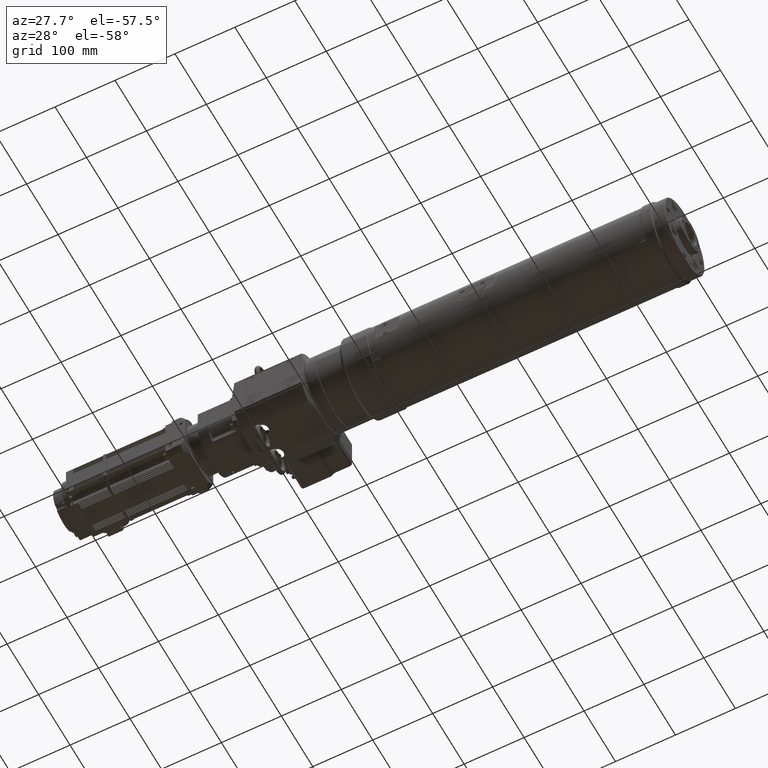
[diagram: clean part render]
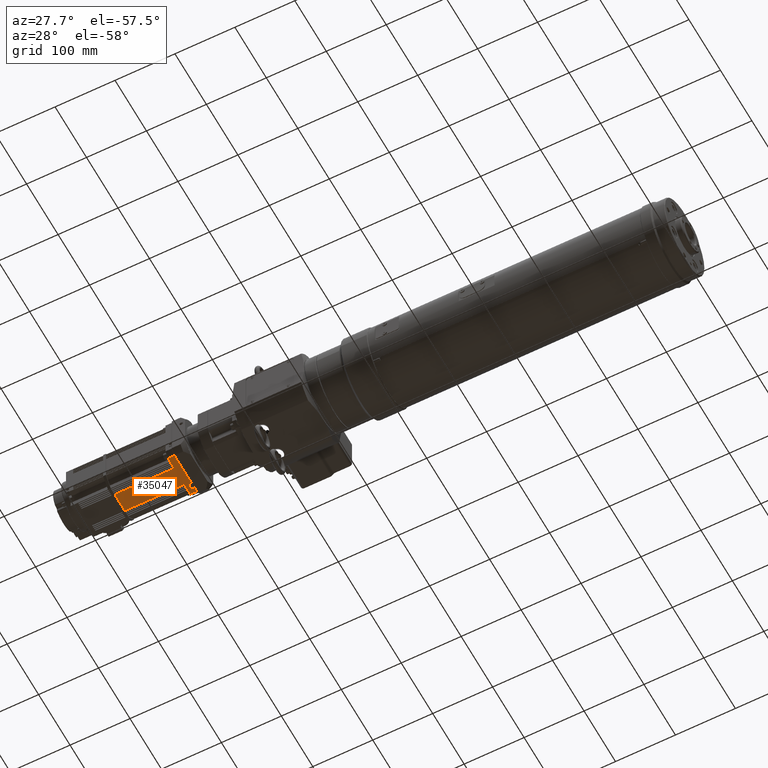
[diagram: same view with one face highlighted and labeled with its STEP entity id]
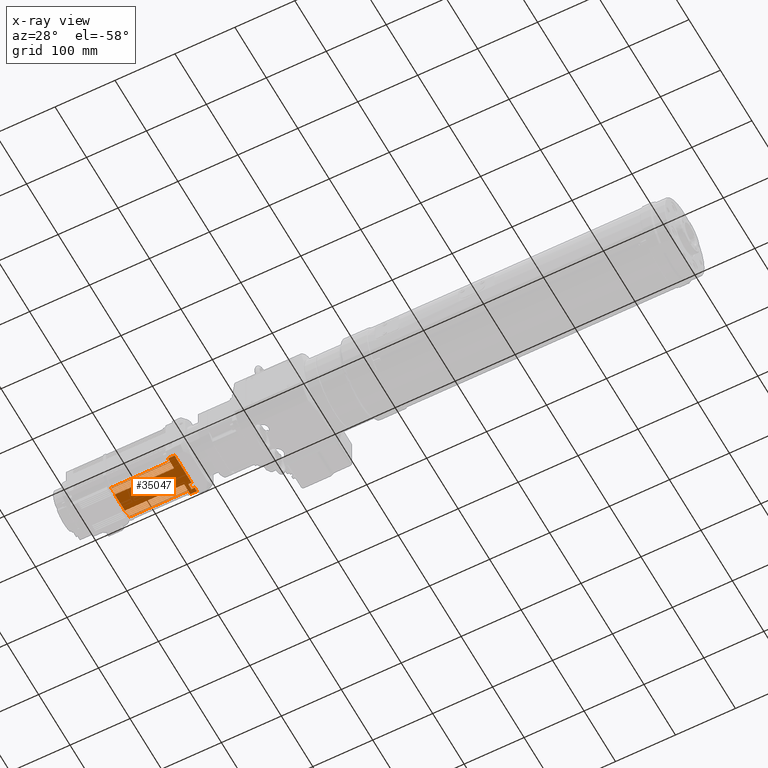
[diagram: x-ray of the same camera — body ghosted, the highlighted face saturated]
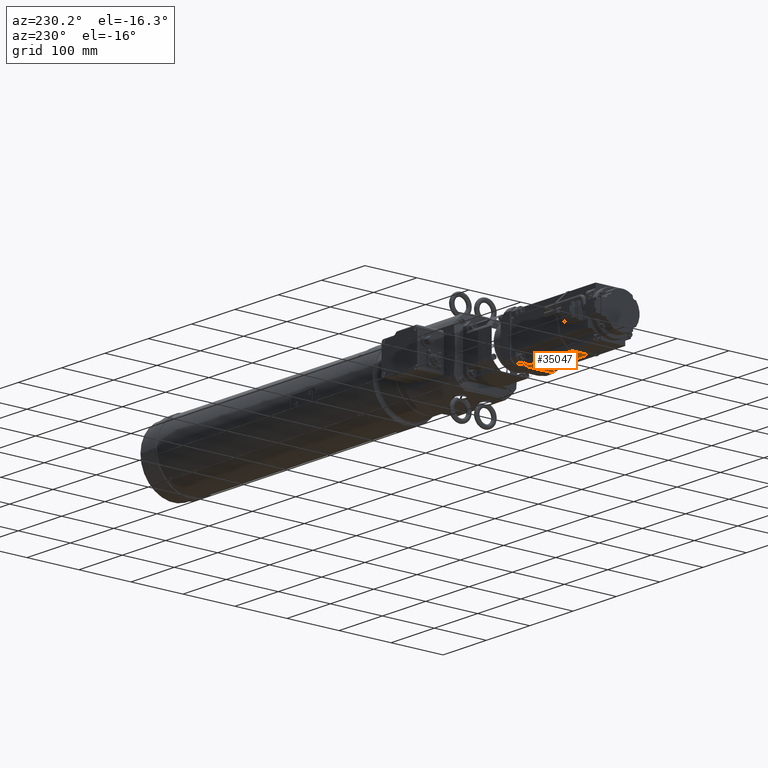
[diagram: same view with one face highlighted and labeled with its STEP entity id]
A machine part, auxiliary view. The second image highlights one B-rep face of the part: STEP entity #35047.
The next image is the same camera in x-ray: the body ghosted, the highlighted face saturated — about 0% of this face is hidden behind the body in this view.
A second angle (auxiliary view) of the same face is appended — the face is thin or edge-on in the first view.
In plain terms, the highlighted planar face has unit normal (-0, -0, -1).
Its self-contained STEP definition (entity closure, byte-faithful):
#1593=PLANE('',#38558);
#3690=FACE_OUTER_BOUND('',#5683,.T.);
#5683=EDGE_LOOP('',(#29913,#29914,#29915,#29916,#29917,#29918,#29919,#29920,
#29921,#29922,#29923,#29924,#29925,#29926,#29927,#29928,#29929,#29930,#29931,
#29932,#29933,#29934,#29935,#29936,#29937,#29938,#29939,#29940,#29941,#29942,
#29943,#29944,#29945,#29946,#29947,#29948,#29949,#29950,#29951,#29952,#29953,
#29954,#29955,#29956));
#8605=LINE('',#54759,#11285);
#8608=LINE('',#54767,#11288);
#9094=LINE('',#57498,#11774);
#9095=LINE('',#57503,#11775);
#9204=LINE('',#57851,#11884);
#9532=LINE('',#59041,#12212);
#9542=LINE('',#59070,#12222);
#9552=LINE('',#59099,#12232);
#9562=LINE('',#59128,#12242);
#9572=LINE('',#59157,#12252);
#9582=LINE('',#59186,#12262);
#9592=LINE('',#59215,#12272);
#9602=LINE('',#59244,#12282);
#9611=LINE('',#59268,#12291);
#9613=LINE('',#59273,#12293);
#9619=LINE('',#59284,#12299);
#9621=LINE('',#59289,#12301);
#9627=LINE('',#59300,#12307);
#9629=LINE('',#59305,#12309);
#9635=LINE('',#59316,#12315);
#9637=LINE('',#59321,#12317);
#9643=LINE('',#59332,#12323);
#9645=LINE('',#59337,#12325);
#9651=LINE('',#59348,#12331);
#9653=LINE('',#59353,#12333);
#9659=LINE('',#59364,#12339);
#9661=LINE('',#59369,#12341);
#9667=LINE('',#59380,#12347);
#9669=LINE('',#59385,#12349);
#9987=LINE('',#60184,#12667);
#9989=LINE('',#60193,#12669);
#9992=LINE('',#60198,#12672);
#10118=LINE('',#60467,#12798);
#10119=LINE('',#60468,#12799);
#10120=LINE('',#60469,#12800);
#10121=LINE('',#60470,#12801);
#10122=LINE('',#60471,#12802);
#10123=LINE('',#60472,#12803);
#10124=LINE('',#60473,#12804);
#10125=LINE('',#60474,#12805);
#10126=LINE('',#60475,#12806);
#10127=LINE('',#60477,#12807);
#10128=LINE('',#60479,#12808);
#10129=LINE('',#60480,#12809);
#11285=VECTOR('',#43075,10.);
#11288=VECTOR('',#43080,10.);
#11774=VECTOR('',#45058,10.);
#11775=VECTOR('',#45063,10.);
#11884=VECTOR('',#45370,10.);
#12212=VECTOR('',#46580,10.);
#12222=VECTOR('',#46604,10.);
#12232=VECTOR('',#46628,10.);
#12242=VECTOR('',#46652,10.);
#12252=VECTOR('',#46676,10.);
#12262=VECTOR('',#46700,10.);
#12272=VECTOR('',#46724,10.);
#12282=VECTOR('',#46748,10.);
#12291=VECTOR('',#46771,10.);
#12293=VECTOR('',#46777,10.);
#12299=VECTOR('',#46787,10.);
#12301=VECTOR('',#46793,10.);
#12307=VECTOR('',#46803,10.);
#12309=VECTOR('',#46809,10.);
#12315=VECTOR('',#46819,10.);
#12317=VECTOR('',#46825,10.);
#12323=VECTOR('',#46835,10.);
#12325=VECTOR('',#46841,10.);
#12331=VECTOR('',#46851,10.);
#12333=VECTOR('',#46857,10.);
#12339=VECTOR('',#46867,10.);
#12341=VECTOR('',#46873,10.);
#12347=VECTOR('',#46883,10.);
#12349=VECTOR('',#46889,10.);
#12667=VECTOR('',#47605,10.);
#12669=VECTOR('',#47615,10.);
#12672=VECTOR('',#47622,10.);
#12798=VECTOR('',#47886,10.);
#12799=VECTOR('',#47887,10.);
#12800=VECTOR('',#47888,10.);
#12801=VECTOR('',#47889,10.);
#12802=VECTOR('',#47890,10.);
#12803=VECTOR('',#47891,10.);
#12804=VECTOR('',#47892,10.);
#12805=VECTOR('',#47893,10.);
#12806=VECTOR('',#47894,10.);
#12807=VECTOR('',#47895,10.);
#12808=VECTOR('',#47896,10.);
#12809=VECTOR('',#47897,10.);
#14460=VERTEX_POINT('',#54756);
#14461=VERTEX_POINT('',#54758);
#14464=VERTEX_POINT('',#54764);
#14465=VERTEX_POINT('',#54766);
#15099=VERTEX_POINT('',#57494);
#15102=VERTEX_POINT('',#57501);
#15230=VERTEX_POINT('',#57848);
#15231=VERTEX_POINT('',#57850);
#15588=VERTEX_POINT('',#59039);
#15589=VERTEX_POINT('',#59040);
#15600=VERTEX_POINT('',#59068);
#15601=VERTEX_POINT('',#59069);
#15612=VERTEX_POINT('',#59097);
#15613=VERTEX_POINT('',#59098);
#15624=VERTEX_POINT('',#59126);
#15625=VERTEX_POINT('',#59127);
#15636=VERTEX_POINT('',#59155);
#15637=VERTEX_POINT('',#59156);
#15648=VERTEX_POINT('',#59184);
#15649=VERTEX_POINT('',#59185);
#15660=VERTEX_POINT('',#59213);
#15661=VERTEX_POINT('',#59214);
#15672=VERTEX_POINT('',#59242);
#15673=VERTEX_POINT('',#59243);
#15681=VERTEX_POINT('',#59266);
#15682=VERTEX_POINT('',#59272);
#15685=VERTEX_POINT('',#59282);
#15686=VERTEX_POINT('',#59288);
#15689=VERTEX_POINT('',#59298);
#15690=VERTEX_POINT('',#59304);
#15693=VERTEX_POINT('',#59314);
#15694=VERTEX_POINT('',#59320);
#15697=VERTEX_POINT('',#59330);
#15698=VERTEX_POINT('',#59336);
#15701=VERTEX_POINT('',#59346);
#15702=VERTEX_POINT('',#59352);
#15705=VERTEX_POINT('',#59362);
#15706=VERTEX_POINT('',#59368);
#15709=VERTEX_POINT('',#59378);
#15710=VERTEX_POINT('',#59384);
#15990=VERTEX_POINT('',#60180);
#15992=VERTEX_POINT('',#60183);
#16070=VERTEX_POINT('',#60476);
#16071=VERTEX_POINT('',#60478);
#18367=EDGE_CURVE('',#14460,#14461,#8605,.T.);
#18371=EDGE_CURVE('',#14464,#14465,#8608,.T.);
#19357=EDGE_CURVE('',#14465,#15099,#9094,.T.);
#19359=EDGE_CURVE('',#14460,#15102,#9095,.T.);
#19526=EDGE_CURVE('',#15231,#15230,#9204,.T.);
#20089=EDGE_CURVE('',#15588,#15589,#9532,.T.);
#20103=EDGE_CURVE('',#15600,#15601,#9542,.T.);
#20117=EDGE_CURVE('',#15612,#15613,#9552,.T.);
#20131=EDGE_CURVE('',#15624,#15625,#9562,.T.);
#20145=EDGE_CURVE('',#15636,#15637,#9572,.T.);
#20159=EDGE_CURVE('',#15648,#15649,#9582,.T.);
#20173=EDGE_CURVE('',#15660,#15661,#9592,.T.);
#20187=EDGE_CURVE('',#15672,#15673,#9602,.T.);
#20200=EDGE_CURVE('',#15681,#15613,#9611,.T.);
#20202=EDGE_CURVE('',#15612,#15682,#9613,.T.);
#20208=EDGE_CURVE('',#15685,#15661,#9619,.T.);
#20210=EDGE_CURVE('',#15660,#15686,#9621,.T.);
#20216=EDGE_CURVE('',#15689,#15649,#9627,.T.);
#20218=EDGE_CURVE('',#15648,#15690,#9629,.T.);
#20224=EDGE_CURVE('',#15693,#15601,#9635,.T.);
#20226=EDGE_CURVE('',#15600,#15694,#9637,.T.);
#20232=EDGE_CURVE('',#15697,#15625,#9643,.T.);
#20234=EDGE_CURVE('',#15624,#15698,#9645,.T.);
#20240=EDGE_CURVE('',#15701,#15673,#9651,.T.);
#20242=EDGE_CURVE('',#15672,#15702,#9653,.T.);
#20248=EDGE_CURVE('',#15705,#15637,#9659,.T.);
#20250=EDGE_CURVE('',#15636,#15706,#9661,.T.);
#20256=EDGE_CURVE('',#15709,#15589,#9667,.T.);
#20258=EDGE_CURVE('',#15588,#15710,#9669,.T.);
#20648=EDGE_CURVE('',#15992,#15990,#9987,.T.);
#20653=EDGE_CURVE('',#15990,#14461,#9989,.T.);
#20656=EDGE_CURVE('',#14464,#15992,#9992,.T.);
#20805=EDGE_CURVE('',#15709,#15706,#10118,.T.);
#20806=EDGE_CURVE('',#15705,#15702,#10119,.T.);
#20807=EDGE_CURVE('',#15701,#15698,#10120,.T.);
#20808=EDGE_CURVE('',#15697,#15694,#10121,.T.);
#20809=EDGE_CURVE('',#15693,#15690,#10122,.T.);
#20810=EDGE_CURVE('',#15689,#15686,#10123,.T.);
#20811=EDGE_CURVE('',#15685,#15682,#10124,.T.);
#20812=EDGE_CURVE('',#15681,#15231,#10125,.T.);
#20813=EDGE_CURVE('',#15230,#15099,#10126,.T.);
#20814=EDGE_CURVE('',#15102,#16070,#10127,.T.);
#20815=EDGE_CURVE('',#16070,#16071,#10128,.T.);
#20816=EDGE_CURVE('',#16071,#15710,#10129,.T.);
#29913=ORIENTED_EDGE('',*,*,#20805,.T.);
#29914=ORIENTED_EDGE('',*,*,#20250,.F.);
#29915=ORIENTED_EDGE('',*,*,#20145,.T.);
#29916=ORIENTED_EDGE('',*,*,#20248,.F.);
#29917=ORIENTED_EDGE('',*,*,#20806,.T.);
#29918=ORIENTED_EDGE('',*,*,#20242,.F.);
#29919=ORIENTED_EDGE('',*,*,#20187,.T.);
#29920=ORIENTED_EDGE('',*,*,#20240,.F.);
#29921=ORIENTED_EDGE('',*,*,#20807,.T.);
#29922=ORIENTED_EDGE('',*,*,#20234,.F.);
#29923=ORIENTED_EDGE('',*,*,#20131,.T.);
#29924=ORIENTED_EDGE('',*,*,#20232,.F.);
#29925=ORIENTED_EDGE('',*,*,#20808,.T.);
#29926=ORIENTED_EDGE('',*,*,#20226,.F.);
#29927=ORIENTED_EDGE('',*,*,#20103,.T.);
#29928=ORIENTED_EDGE('',*,*,#20224,.F.);
#29929=ORIENTED_EDGE('',*,*,#20809,.T.);
#29930=ORIENTED_EDGE('',*,*,#20218,.F.);
#29931=ORIENTED_EDGE('',*,*,#20159,.T.);
#29932=ORIENTED_EDGE('',*,*,#20216,.F.);
#29933=ORIENTED_EDGE('',*,*,#20810,.T.);
#29934=ORIENTED_EDGE('',*,*,#20210,.F.);
#29935=ORIENTED_EDGE('',*,*,#20173,.T.);
#29936=ORIENTED_EDGE('',*,*,#20208,.F.);
#29937=ORIENTED_EDGE('',*,*,#20811,.T.);
#29938=ORIENTED_EDGE('',*,*,#20202,.F.);
#29939=ORIENTED_EDGE('',*,*,#20117,.T.);
#29940=ORIENTED_EDGE('',*,*,#20200,.F.);
#29941=ORIENTED_EDGE('',*,*,#20812,.T.);
#29942=ORIENTED_EDGE('',*,*,#19526,.T.);
#29943=ORIENTED_EDGE('',*,*,#20813,.T.);
#29944=ORIENTED_EDGE('',*,*,#19357,.F.);
#29945=ORIENTED_EDGE('',*,*,#18371,.F.);
#29946=ORIENTED_EDGE('',*,*,#20656,.T.);
#29947=ORIENTED_EDGE('',*,*,#20648,.T.);
#29948=ORIENTED_EDGE('',*,*,#20653,.T.);
#29949=ORIENTED_EDGE('',*,*,#18367,.F.);
#29950=ORIENTED_EDGE('',*,*,#19359,.T.);
#29951=ORIENTED_EDGE('',*,*,#20814,.T.);
#29952=ORIENTED_EDGE('',*,*,#20815,.T.);
#29953=ORIENTED_EDGE('',*,*,#20816,.T.);
#29954=ORIENTED_EDGE('',*,*,#20258,.F.);
#29955=ORIENTED_EDGE('',*,*,#20089,.T.);
#29956=ORIENTED_EDGE('',*,*,#20256,.F.);
#35047=ADVANCED_FACE('',(#3690),#1593,.T.);
#38558=AXIS2_PLACEMENT_3D('',#60466,#47884,#47885);
#43075=DIRECTION('',(-7.70858088703352E-19,1.,-3.99680288865055E-15));
#43080=DIRECTION('',(-7.70858088703352E-19,1.,-3.99680288865055E-15));
#45058=DIRECTION('',(-1.,-3.45670581835889E-16,2.53728308590351E-16));
#45063=DIRECTION('',(-1.,-3.45670581835889E-16,2.53728308590351E-16));
#45370=DIRECTION('',(1.,3.45670581835889E-16,-2.53728308590351E-16));
#46580=DIRECTION('',(-3.4567058183589E-16,1.,-3.99680288865055E-15));
#46604=DIRECTION('',(1.13462678433098E-15,1.,-3.99680288865055E-15));
#46628=DIRECTION('',(1.13462678433098E-15,1.,-3.99680288865055E-15));
#46652=DIRECTION('',(1.13462678433098E-15,1.,-3.99680288865055E-15));
#46676=DIRECTION('',(-3.4567058183589E-16,1.,-3.99680288865055E-15));
#46700=DIRECTION('',(-3.4567058183589E-16,1.,-3.99680288865055E-15));
#46724=DIRECTION('',(-3.4567058183589E-16,1.,-3.99680288865055E-15));
#46748=DIRECTION('',(1.13462678433098E-15,1.,-3.99680288865055E-15));
#46771=DIRECTION('',(1.,3.02415139318025E-16,-2.53728308590351E-16));
#46777=DIRECTION('',(-1.,-2.87996658478738E-16,2.53728308590351E-16));
#46787=DIRECTION('',(1.,3.88926024353752E-16,-2.53728308590351E-16));
#46793=DIRECTION('',(-1.,-3.16833620157313E-16,2.53728308590351E-16));
#46803=DIRECTION('',(1.,7.49388045335945E-16,-2.53728308590353E-16));
#46809=DIRECTION('',(-1.,-7.2055108365737E-16,2.53728308590352E-16));
#46819=DIRECTION('',(1.,6.05203236943068E-16,-2.53728308590352E-16));
#46825=DIRECTION('',(-1.,-4.61018428550191E-16,2.53728308590351E-16));
#46835=DIRECTION('',(1.,2.87996658478738E-16,-2.53728308590351E-16));
#46841=DIRECTION('',(-1.,-2.30322735121587E-16,2.5372830859035E-16));
#46851=DIRECTION('',(1.,-1.7339472837847E-16,-2.53728308590349E-16));
#46857=DIRECTION('',(-1.,1.7339472837847E-16,2.53728308590349E-16));
#46867=DIRECTION('',(1.,2.87996658478738E-16,-2.53728308590351E-16));
#46873=DIRECTION('',(-1.,-2.87996658478738E-16,2.53728308590351E-16));
#46883=DIRECTION('',(1.,3.45670581835889E-16,-2.53728308590351E-16));
#46889=DIRECTION('',(-1.,-1.72648811764436E-16,2.5372830859035E-16));
#47605=DIRECTION('',(-1.65548903513319E-16,-1.,3.99680288865055E-15));
#47615=DIRECTION('',(1.,-1.6554890351332E-16,-2.53728308590349E-16));
#47622=DIRECTION('',(-1.,1.6554890351332E-16,2.53728308590349E-16));
#47884=DIRECTION('center_axis',(-2.5372830859035E-16,-3.99680288865055E-15,
-1.));
#47885=DIRECTION('ref_axis',(3.4567058183589E-16,-1.,3.99680288865055E-15));
#47886=DIRECTION('',(-3.4567058183589E-16,1.,-3.99680288865055E-15));
#47887=DIRECTION('',(-3.4567058183589E-16,1.,-3.99680288865055E-15));
#47888=DIRECTION('',(-3.4567058183589E-16,1.,-3.99680288865055E-15));
#47889=DIRECTION('',(-3.4567058183589E-16,1.,-3.99680288865055E-15));
#47890=DIRECTION('',(-3.4567058183589E-16,1.,-3.99680288865055E-15));
#47891=DIRECTION('',(-3.4567058183589E-16,1.,-3.99680288865055E-15));
#47892=DIRECTION('',(-3.4567058183589E-16,1.,-3.99680288865055E-15));
#47893=DIRECTION('',(-3.4567058183589E-16,1.,-3.99680288865055E-15));
#47894=DIRECTION('',(-3.4567058183589E-16,1.,-3.99680288865055E-15));
#47895=DIRECTION('',(-3.4567058183589E-16,1.,-3.99680288865055E-15));
#47896=DIRECTION('',(-1.,-3.45670581835889E-16,2.53728308590351E-16));
#47897=DIRECTION('',(-3.4567058183589E-16,1.,-3.99680288865055E-15));
#54756=CARTESIAN_POINT('',(-249.500000000001,-35.2668399491645,-43.5));
#54758=CARTESIAN_POINT('',(-249.500000000001,18.5000000000002,-43.5000000000002));
#54759=CARTESIAN_POINT('',(-249.500000000002,17.6334199745826,-43.5000000000002));
#54764=CARTESIAN_POINT('',(-249.500000000001,28.5000000000002,-43.5000000000002));
#54766=CARTESIAN_POINT('',(-249.500000000001,35.2668399491649,-43.5000000000002));
#54767=CARTESIAN_POINT('',(-249.500000000002,17.6334199745826,-43.5000000000002));
#57494=CARTESIAN_POINT('',(-260.500000000001,35.2668399491649,-43.5000000000003));
#57498=CARTESIAN_POINT('',(-249.500000000001,35.2668399491649,-43.5000000000002));
#57501=CARTESIAN_POINT('',(-260.500000000001,-35.2668399491645,-43.5));
#57503=CARTESIAN_POINT('',(-249.500000000001,-35.2668399491645,-43.5));
#57848=CARTESIAN_POINT('',(-260.500000000001,28.5000000000002,-43.5000000000002));
#57850=CARTESIAN_POINT('',(-359.500000000001,28.5000000000002,-43.5000000000002));
#57851=CARTESIAN_POINT('',(-338.000000000001,28.5000000000002,-43.5000000000002));
#59039=CARTESIAN_POINT('',(-260.500000000001,-27.5999999999998,-43.5));
#59040=CARTESIAN_POINT('',(-260.500000000001,-24.8999999999998,-43.5));
#59041=CARTESIAN_POINT('',(-260.500000000001,4.13341997458256,-43.5000000000001));
#59068=CARTESIAN_POINT('',(-260.500000000001,15.9000000000003,-43.5000000000002));
#59069=CARTESIAN_POINT('',(-260.500000000001,18.6000000000003,-43.5000000000002));
#59070=CARTESIAN_POINT('',(-260.500000000001,25.8834199745826,-43.5000000000002));
#59097=CARTESIAN_POINT('',(-260.500000000001,24.9000000000002,-43.5000000000002));
#59098=CARTESIAN_POINT('',(-260.500000000001,27.6000000000002,-43.5000000000002));
#59099=CARTESIAN_POINT('',(-260.500000000001,30.3834199745826,-43.5000000000002));
#59126=CARTESIAN_POINT('',(-260.500000000001,-18.5999999999998,-43.5));
#59127=CARTESIAN_POINT('',(-260.500000000001,-15.8999999999998,-43.5));
#59128=CARTESIAN_POINT('',(-260.500000000001,8.63341997458256,-43.5000000000001));
#59155=CARTESIAN_POINT('',(-260.500000000001,-24.5999999999998,-43.5));
#59156=CARTESIAN_POINT('',(-260.500000000001,-21.8999999999998,-43.5));
#59157=CARTESIAN_POINT('',(-260.500000000001,5.63341997458255,-43.5000000000001));
#59184=CARTESIAN_POINT('',(-260.500000000001,18.9000000000003,-43.5000000000002));
#59185=CARTESIAN_POINT('',(-260.500000000001,21.6000000000003,-43.5000000000002));
#59186=CARTESIAN_POINT('',(-260.500000000001,27.3834199745826,-43.5000000000002));
#59213=CARTESIAN_POINT('',(-260.500000000001,21.9000000000002,-43.5000000000002));
#59214=CARTESIAN_POINT('',(-260.500000000001,24.6000000000002,-43.5000000000002));
#59215=CARTESIAN_POINT('',(-260.500000000001,28.8834199745826,-43.5000000000002));
#59242=CARTESIAN_POINT('',(-260.500000000001,-21.5999999999998,-43.5));
#59243=CARTESIAN_POINT('',(-260.500000000001,-18.8999999999998,-43.5));
#59244=CARTESIAN_POINT('',(-260.500000000001,7.13341997458256,-43.5000000000001));
#59266=CARTESIAN_POINT('',(-359.500000000001,27.6000000000002,-43.5000000000002));
#59268=CARTESIAN_POINT('',(-255.000000000001,27.6000000000002,-43.5000000000002));
#59272=CARTESIAN_POINT('',(-359.500000000001,24.9000000000002,-43.5000000000002));
#59273=CARTESIAN_POINT('',(-332.000000000001,24.9000000000002,-43.5000000000002));
#59282=CARTESIAN_POINT('',(-359.500000000001,24.6000000000002,-43.5000000000002));
#59284=CARTESIAN_POINT('',(-255.000000000001,24.6000000000002,-43.5000000000002));
#59288=CARTESIAN_POINT('',(-359.500000000001,21.9000000000002,-43.5000000000002));
#59289=CARTESIAN_POINT('',(-332.000000000001,21.9000000000002,-43.5000000000002));
#59298=CARTESIAN_POINT('',(-359.500000000001,21.6000000000002,-43.5000000000002));
#59300=CARTESIAN_POINT('',(-255.000000000001,21.6000000000003,-43.5000000000002));
#59304=CARTESIAN_POINT('',(-359.500000000001,18.9000000000002,-43.5000000000002));
#59305=CARTESIAN_POINT('',(-332.000000000001,18.9000000000002,-43.5000000000002));
#59314=CARTESIAN_POINT('',(-359.500000000001,18.6000000000002,-43.5000000000001));
#59316=CARTESIAN_POINT('',(-255.000000000001,18.6000000000003,-43.5000000000002));
#59320=CARTESIAN_POINT('',(-359.500000000001,15.9000000000002,-43.5000000000001));
#59321=CARTESIAN_POINT('',(-332.000000000001,15.9000000000002,-43.5000000000001));
#59330=CARTESIAN_POINT('',(-359.500000000001,-15.8999999999998,-43.5));
#59332=CARTESIAN_POINT('',(-255.000000000001,-15.8999999999998,-43.5));
#59336=CARTESIAN_POINT('',(-359.500000000001,-18.5999999999998,-43.5));
#59337=CARTESIAN_POINT('',(-332.000000000001,-18.5999999999998,-43.5));
#59346=CARTESIAN_POINT('',(-359.500000000001,-18.8999999999998,-43.5));
#59348=CARTESIAN_POINT('',(-255.000000000001,-18.8999999999998,-43.5));
#59352=CARTESIAN_POINT('',(-359.500000000001,-21.5999999999998,-43.5));
#59353=CARTESIAN_POINT('',(-332.000000000001,-21.5999999999998,-43.5));
#59362=CARTESIAN_POINT('',(-359.500000000001,-21.8999999999998,-43.5));
#59364=CARTESIAN_POINT('',(-255.000000000001,-21.8999999999998,-43.5));
#59368=CARTESIAN_POINT('',(-359.500000000001,-24.5999999999998,-43.5));
#59369=CARTESIAN_POINT('',(-332.000000000001,-24.5999999999998,-43.5));
#59378=CARTESIAN_POINT('',(-359.500000000001,-24.8999999999998,-43.5));
#59380=CARTESIAN_POINT('',(-255.000000000001,-24.8999999999998,-43.5));
#59384=CARTESIAN_POINT('',(-359.500000000001,-27.5999999999998,-43.5));
#59385=CARTESIAN_POINT('',(-332.000000000001,-27.5999999999998,-43.5));
#60180=CARTESIAN_POINT('',(-255.000000000001,18.5000000000002,-43.5000000000002));
#60183=CARTESIAN_POINT('',(-255.000000000001,28.5000000000002,-43.5000000000002));
#60184=CARTESIAN_POINT('',(-255.000000000001,29.3834199745826,-43.5000000000002));
#60193=CARTESIAN_POINT('',(-249.500000000001,18.5000000000002,-43.5000000000002));
#60198=CARTESIAN_POINT('',(-249.500000000001,28.5000000000002,-43.5000000000002));
#60466=CARTESIAN_POINT('Origin',(-249.500000000001,35.2668399491649,-43.5000000000002));
#60467=CARTESIAN_POINT('',(-359.500000000001,19.6334199745826,-43.5000000000002));
#60468=CARTESIAN_POINT('',(-359.500000000001,19.6334199745826,-43.5000000000002));
#60469=CARTESIAN_POINT('',(-359.500000000001,19.6334199745826,-43.5000000000002));
#60470=CARTESIAN_POINT('',(-359.500000000001,19.6334199745826,-43.5000000000002));
#60471=CARTESIAN_POINT('',(-359.500000000001,19.6334199745826,-43.5000000000002));
#60472=CARTESIAN_POINT('',(-359.500000000001,19.6334199745826,-43.5000000000002));
#60473=CARTESIAN_POINT('',(-359.500000000001,19.6334199745826,-43.5000000000002));
#60474=CARTESIAN_POINT('',(-359.500000000001,19.6334199745826,-43.5000000000002));
#60475=CARTESIAN_POINT('',(-260.500000000001,35.6334199745826,-43.5000000000002));
#60476=CARTESIAN_POINT('',(-260.500000000001,-28.4999999999998,-43.5));
#60477=CARTESIAN_POINT('',(-260.500000000001,-0.366580025417438,-43.5000000000001));
#60478=CARTESIAN_POINT('',(-359.500000000001,-28.4999999999998,-43.5));
#60479=CARTESIAN_POINT('',(-338.000000000001,-28.4999999999998,-43.5));
#60480=CARTESIAN_POINT('',(-359.500000000001,19.6334199745826,-43.5000000000002));